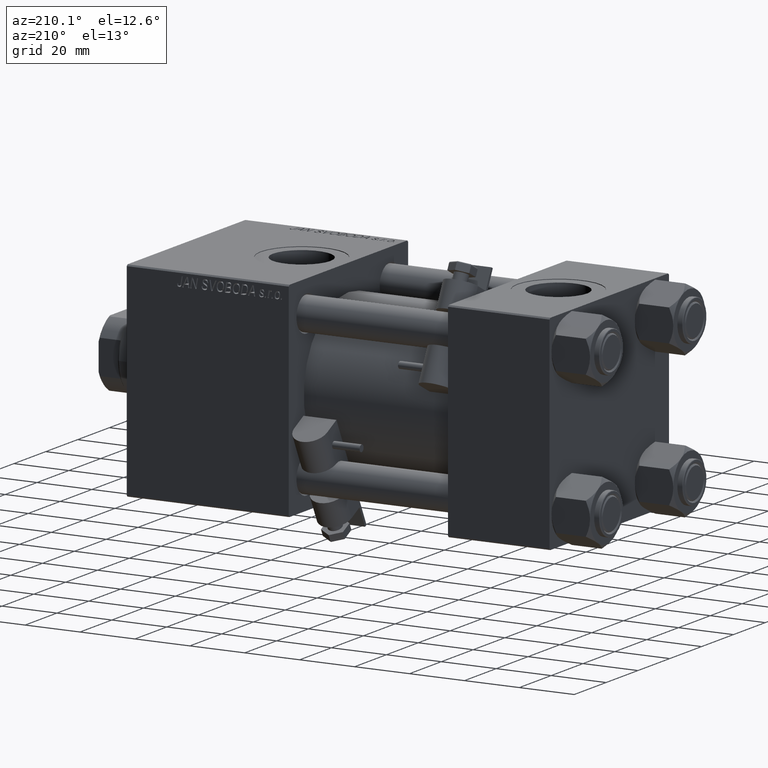
[diagram: clean part render]
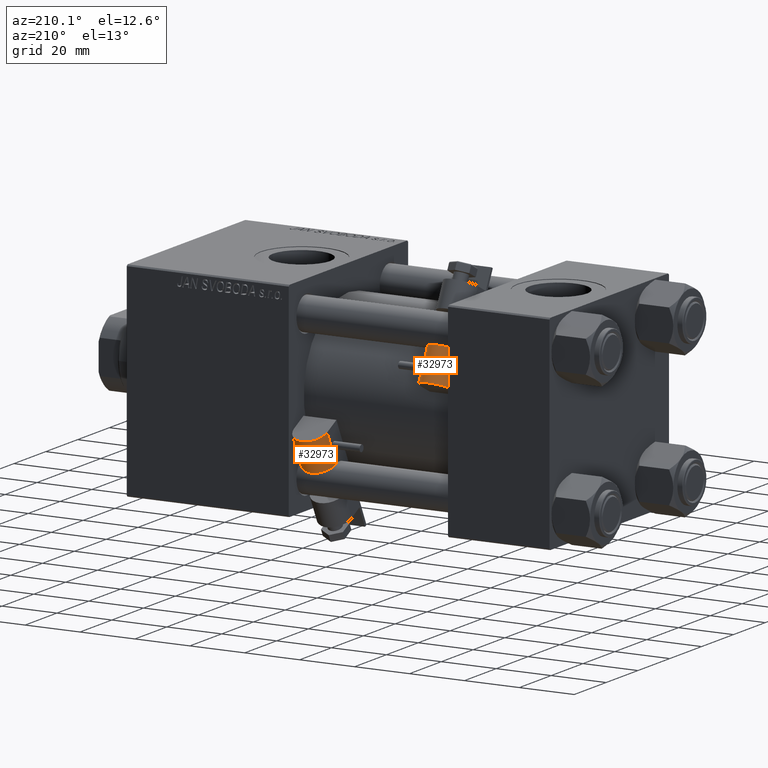
[diagram: same view with one multi-face feature highlighted, each face labeled with its STEP entity id]
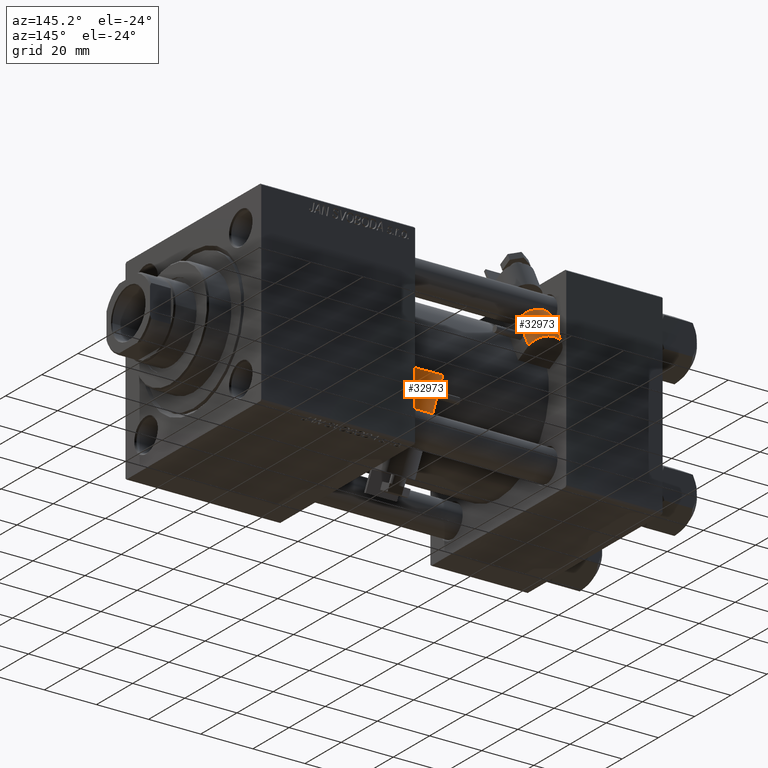
[diagram: same view with one multi-face feature highlighted, each face labeled with its STEP entity id]
A machine part, auxiliary view. The highlighted faces form ONE feature: a constant-radius fillet chain: 2 tangent blend faces with common blend radius 6 mm. The faces share edges in the B-rep.
A second angle (auxiliary view) of the same feature is appended — it is thin or edge-on in the first view.
Their STEP definitions:
[1] entity #32973 (Cylinder):
#217 = CARTESIAN_POINT ( 'NONE',  ( 21.74000000000000554, 6.833334343287445378, -5.993067653927525384 ) ) ;
#505 = CIRCLE ( 'NONE', #41056, 6.000000000000002665 ) ;
#751 = DIRECTION ( 'NONE',  ( 0.000000000000000000, 0.000000000000000000, -1.000000000000000000 ) ) ;
#2022 = EDGE_CURVE ( 'NONE', #22707, #45835, #32974, .T. ) ;
#2374 = CARTESIAN_POINT ( 'NONE',  ( 21.74000000000000199, 6.833334343287446266, 5.993067653927570682 ) ) ;
#2812 = CIRCLE ( 'NONE', #31775, 6.000000000000002665 ) ;
#2886 = VECTOR ( 'NONE', #42748, 1000.000000000000000 ) ;
#3272 = DIRECTION ( 'NONE',  ( 0.000000000000000000, 0.000000000000000000, 1.000000000000000000 ) ) ;
#4715 = DIRECTION ( 'NONE',  ( 0.000000000000000000, 0.000000000000000000, -1.000000000000000000 ) ) ;
#5390 = VERTEX_POINT ( 'NONE', #39315 ) ;
#6259 = CARTESIAN_POINT ( 'NONE',  ( 34.24000000000000909, 6.500000000000000000, -5.999999999999980460 ) ) ;
#7133 = DIRECTION ( 'NONE',  ( 1.000000000000000000, 0.000000000000000000, 0.000000000000000000 ) ) ;
#7146 = DIRECTION ( 'NONE',  ( -1.000000000000000000, -0.000000000000000000, -0.000000000000000000 ) ) ;
#7261 = CARTESIAN_POINT ( 'NONE',  ( 21.71913037155070469, 6.500000000000000000, -5.999999999999980460 ) ) ;
#8819 = EDGE_LOOP ( 'NONE', ( #49978, #11647, #17803, #34882, #13416, #51255 ) ) ;
#8845 = CARTESIAN_POINT ( 'NONE',  ( 21.74000000000000199, 7.000000000000000000, 5.979130371550724021 ) ) ;
#9024 = CARTESIAN_POINT ( 'NONE',  ( 21.74000000000000199, 7.000000000000000000, -5.979130371550678724 ) ) ;
#11647 = ORIENTED_EDGE ( 'NONE', *, *, #2022, .T. ) ;
#12140 = CARTESIAN_POINT ( 'NONE',  ( 21.71913037155070469, 6.500000000000000000, -5.999999999999980460 ) ) ;
#13416 = ORIENTED_EDGE ( 'NONE', *, *, #17174, .F. ) ;
#14951 = EDGE_CURVE ( 'NONE', #45835, #26803, #2812, .T. ) ;
#15049 = CARTESIAN_POINT ( 'NONE',  ( 21.71913037155070469, 6.499999999999999112, 6.000000000000006217 ) ) ;
#17174 = EDGE_CURVE ( 'NONE', #5390, #43269, #46643, .T. ) ;
#17803 = ORIENTED_EDGE ( 'NONE', *, *, #14951, .T. ) ;
#18179 = CARTESIAN_POINT ( 'NONE',  ( 21.73306765392754869, 6.666665656712551957, 6.000000000000024869 ) ) ;
#19332 = FACE_OUTER_BOUND ( 'NONE', #8819, .T. ) ;
#19931 = DIRECTION ( 'NONE',  ( 1.000000000000000000, 0.000000000000000000, 0.000000000000000000 ) ) ;
#20476 = EDGE_CURVE ( 'NONE', #23379, #5390, #505, .T. ) ;
#22707 = VERTEX_POINT ( 'NONE', #7261 ) ;
#23228 = CYLINDRICAL_SURFACE ( 'NONE', #38889, 6.000000000000002665 ) ;
#23379 = VERTEX_POINT ( 'NONE', #6259 ) ;
#25027 = EDGE_CURVE ( 'NONE', #23379, #22707, #42761, .T. ) ;
#26803 = VERTEX_POINT ( 'NONE', #8845 ) ;
#27239 = CARTESIAN_POINT ( 'NONE',  ( 34.24000000000000909, 6.500000000000000000, -5.999999999999980460 ) ) ;
#28817 = CARTESIAN_POINT ( 'NONE',  ( 21.74000000000000199, 6.500000000000000000, 2.255140518769849223E-14 ) ) ;
#28852 = VECTOR ( 'NONE', #30594, 1000.000000000000000 ) ;
#30594 = DIRECTION ( 'NONE',  ( -1.000000000000000000, -0.000000000000000000, -0.000000000000000000 ) ) ;
#31606 = CARTESIAN_POINT ( 'NONE',  ( 34.24000000000000909, 6.499999999999999112, 6.000000000000006217 ) ) ;
#31775 = AXIS2_PLACEMENT_3D ( 'NONE', #28817, #7133, #4715 ) ;
#32973 = ADVANCED_FACE ( 'NONE', ( #19332 ), #23228, .T. ) ;
#32974 = B_SPLINE_CURVE_WITH_KNOTS ( 'NONE', 3,
 ( #12140, #48410, #217, #9024 ),
 .UNSPECIFIED., .F., .F.,
 ( 4, 4 ),
 ( 8.673617379884035472E-19, 0.0005008703253170674946 ),
 .UNSPECIFIED. ) ;
#34882 = ORIENTED_EDGE ( 'NONE', *, *, #40814, .T. ) ;
#34935 = CARTESIAN_POINT ( 'NONE',  ( 21.74000000000000199, 7.000000000000000000, -5.979130371550678724 ) ) ;
#37860 = CARTESIAN_POINT ( 'NONE',  ( 21.74000000000000199, 7.000000000000000000, 5.979130371550724021 ) ) ;
#38889 = AXIS2_PLACEMENT_3D ( 'NONE', #50690, #7146, #3272 ) ;
#39315 = CARTESIAN_POINT ( 'NONE',  ( 34.24000000000000909, 6.499999999999999112, 6.000000000000006217 ) ) ;
#39371 = CARTESIAN_POINT ( 'NONE',  ( 34.24000000000000909, 6.500000000000000000, 2.255140518769849223E-14 ) ) ;
#40814 = EDGE_CURVE ( 'NONE', #26803, #43269, #42574, .T. ) ;
#41056 = AXIS2_PLACEMENT_3D ( 'NONE', #39371, #19931, #751 ) ;
#42574 = B_SPLINE_CURVE_WITH_KNOTS ( 'NONE', 3,
 ( #37860, #2374, #18179, #15049 ),
 .UNSPECIFIED., .F., .F.,
 ( 4, 4 ),
 ( 0.000000000000000000, 0.0005008703253170666272 ),
 .UNSPECIFIED. ) ;
#42748 = DIRECTION ( 'NONE',  ( -1.000000000000000000, -0.000000000000000000, -0.000000000000000000 ) ) ;
#42761 = LINE ( 'NONE', #27239, #28852 ) ;
#43269 = VERTEX_POINT ( 'NONE', #50333 ) ;
#45835 = VERTEX_POINT ( 'NONE', #34935 ) ;
#46643 = LINE ( 'NONE', #31606, #2886 ) ;
#48410 = CARTESIAN_POINT ( 'NONE',  ( 21.73306765392754869, 6.666665656712553734, -5.999999999999997335 ) ) ;
#49978 = ORIENTED_EDGE ( 'NONE', *, *, #25027, .T. ) ;
#50333 = CARTESIAN_POINT ( 'NONE',  ( 21.71913037155070469, 6.499999999999999112, 6.000000000000006217 ) ) ;
#50690 = CARTESIAN_POINT ( 'NONE',  ( 34.24000000000000909, 6.500000000000000000, 2.255140518769849223E-14 ) ) ;
#51255 = ORIENTED_EDGE ( 'NONE', *, *, #20476, .F. ) ;
[2] entity #32973 (Cylinder):
#217 = CARTESIAN_POINT ( 'NONE',  ( 21.74000000000000554, 6.833334343287445378, -5.993067653927525384 ) ) ;
#505 = CIRCLE ( 'NONE', #41056, 6.000000000000002665 ) ;
#751 = DIRECTION ( 'NONE',  ( 0.000000000000000000, 0.000000000000000000, -1.000000000000000000 ) ) ;
#2022 = EDGE_CURVE ( 'NONE', #22707, #45835, #32974, .T. ) ;
#2374 = CARTESIAN_POINT ( 'NONE',  ( 21.74000000000000199, 6.833334343287446266, 5.993067653927570682 ) ) ;
#2812 = CIRCLE ( 'NONE', #31775, 6.000000000000002665 ) ;
#2886 = VECTOR ( 'NONE', #42748, 1000.000000000000000 ) ;
#3272 = DIRECTION ( 'NONE',  ( 0.000000000000000000, 0.000000000000000000, 1.000000000000000000 ) ) ;
#4715 = DIRECTION ( 'NONE',  ( 0.000000000000000000, 0.000000000000000000, -1.000000000000000000 ) ) ;
#5390 = VERTEX_POINT ( 'NONE', #39315 ) ;
#6259 = CARTESIAN_POINT ( 'NONE',  ( 34.24000000000000909, 6.500000000000000000, -5.999999999999980460 ) ) ;
#7133 = DIRECTION ( 'NONE',  ( 1.000000000000000000, 0.000000000000000000, 0.000000000000000000 ) ) ;
#7146 = DIRECTION ( 'NONE',  ( -1.000000000000000000, -0.000000000000000000, -0.000000000000000000 ) ) ;
#7261 = CARTESIAN_POINT ( 'NONE',  ( 21.71913037155070469, 6.500000000000000000, -5.999999999999980460 ) ) ;
#8819 = EDGE_LOOP ( 'NONE', ( #49978, #11647, #17803, #34882, #13416, #51255 ) ) ;
#8845 = CARTESIAN_POINT ( 'NONE',  ( 21.74000000000000199, 7.000000000000000000, 5.979130371550724021 ) ) ;
#9024 = CARTESIAN_POINT ( 'NONE',  ( 21.74000000000000199, 7.000000000000000000, -5.979130371550678724 ) ) ;
#11647 = ORIENTED_EDGE ( 'NONE', *, *, #2022, .T. ) ;
#12140 = CARTESIAN_POINT ( 'NONE',  ( 21.71913037155070469, 6.500000000000000000, -5.999999999999980460 ) ) ;
#13416 = ORIENTED_EDGE ( 'NONE', *, *, #17174, .F. ) ;
#14951 = EDGE_CURVE ( 'NONE', #45835, #26803, #2812, .T. ) ;
#15049 = CARTESIAN_POINT ( 'NONE',  ( 21.71913037155070469, 6.499999999999999112, 6.000000000000006217 ) ) ;
#17174 = EDGE_CURVE ( 'NONE', #5390, #43269, #46643, .T. ) ;
#17803 = ORIENTED_EDGE ( 'NONE', *, *, #14951, .T. ) ;
#18179 = CARTESIAN_POINT ( 'NONE',  ( 21.73306765392754869, 6.666665656712551957, 6.000000000000024869 ) ) ;
#19332 = FACE_OUTER_BOUND ( 'NONE', #8819, .T. ) ;
#19931 = DIRECTION ( 'NONE',  ( 1.000000000000000000, 0.000000000000000000, 0.000000000000000000 ) ) ;
#20476 = EDGE_CURVE ( 'NONE', #23379, #5390, #505, .T. ) ;
#22707 = VERTEX_POINT ( 'NONE', #7261 ) ;
#23228 = CYLINDRICAL_SURFACE ( 'NONE', #38889, 6.000000000000002665 ) ;
#23379 = VERTEX_POINT ( 'NONE', #6259 ) ;
#25027 = EDGE_CURVE ( 'NONE', #23379, #22707, #42761, .T. ) ;
#26803 = VERTEX_POINT ( 'NONE', #8845 ) ;
#27239 = CARTESIAN_POINT ( 'NONE',  ( 34.24000000000000909, 6.500000000000000000, -5.999999999999980460 ) ) ;
#28817 = CARTESIAN_POINT ( 'NONE',  ( 21.74000000000000199, 6.500000000000000000, 2.255140518769849223E-14 ) ) ;
#28852 = VECTOR ( 'NONE', #30594, 1000.000000000000000 ) ;
#30594 = DIRECTION ( 'NONE',  ( -1.000000000000000000, -0.000000000000000000, -0.000000000000000000 ) ) ;
#31606 = CARTESIAN_POINT ( 'NONE',  ( 34.24000000000000909, 6.499999999999999112, 6.000000000000006217 ) ) ;
#31775 = AXIS2_PLACEMENT_3D ( 'NONE', #28817, #7133, #4715 ) ;
#32973 = ADVANCED_FACE ( 'NONE', ( #19332 ), #23228, .T. ) ;
#32974 = B_SPLINE_CURVE_WITH_KNOTS ( 'NONE', 3,
 ( #12140, #48410, #217, #9024 ),
 .UNSPECIFIED., .F., .F.,
 ( 4, 4 ),
 ( 8.673617379884035472E-19, 0.0005008703253170674946 ),
 .UNSPECIFIED. ) ;
#34882 = ORIENTED_EDGE ( 'NONE', *, *, #40814, .T. ) ;
#34935 = CARTESIAN_POINT ( 'NONE',  ( 21.74000000000000199, 7.000000000000000000, -5.979130371550678724 ) ) ;
#37860 = CARTESIAN_POINT ( 'NONE',  ( 21.74000000000000199, 7.000000000000000000, 5.979130371550724021 ) ) ;
#38889 = AXIS2_PLACEMENT_3D ( 'NONE', #50690, #7146, #3272 ) ;
#39315 = CARTESIAN_POINT ( 'NONE',  ( 34.24000000000000909, 6.499999999999999112, 6.000000000000006217 ) ) ;
#39371 = CARTESIAN_POINT ( 'NONE',  ( 34.24000000000000909, 6.500000000000000000, 2.255140518769849223E-14 ) ) ;
#40814 = EDGE_CURVE ( 'NONE', #26803, #43269, #42574, .T. ) ;
#41056 = AXIS2_PLACEMENT_3D ( 'NONE', #39371, #19931, #751 ) ;
#42574 = B_SPLINE_CURVE_WITH_KNOTS ( 'NONE', 3,
 ( #37860, #2374, #18179, #15049 ),
 .UNSPECIFIED., .F., .F.,
 ( 4, 4 ),
 ( 0.000000000000000000, 0.0005008703253170666272 ),
 .UNSPECIFIED. ) ;
#42748 = DIRECTION ( 'NONE',  ( -1.000000000000000000, -0.000000000000000000, -0.000000000000000000 ) ) ;
#42761 = LINE ( 'NONE', #27239, #28852 ) ;
#43269 = VERTEX_POINT ( 'NONE', #50333 ) ;
#45835 = VERTEX_POINT ( 'NONE', #34935 ) ;
#46643 = LINE ( 'NONE', #31606, #2886 ) ;
#48410 = CARTESIAN_POINT ( 'NONE',  ( 21.73306765392754869, 6.666665656712553734, -5.999999999999997335 ) ) ;
#49978 = ORIENTED_EDGE ( 'NONE', *, *, #25027, .T. ) ;
#50333 = CARTESIAN_POINT ( 'NONE',  ( 21.71913037155070469, 6.499999999999999112, 6.000000000000006217 ) ) ;
#50690 = CARTESIAN_POINT ( 'NONE',  ( 34.24000000000000909, 6.500000000000000000, 2.255140518769849223E-14 ) ) ;
#51255 = ORIENTED_EDGE ( 'NONE', *, *, #20476, .F. ) ;